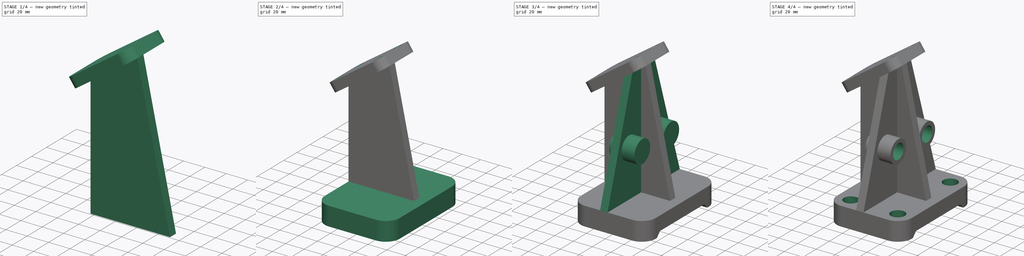
[diagram: build sequence overview — one tinted view per stage of 4, left to right]
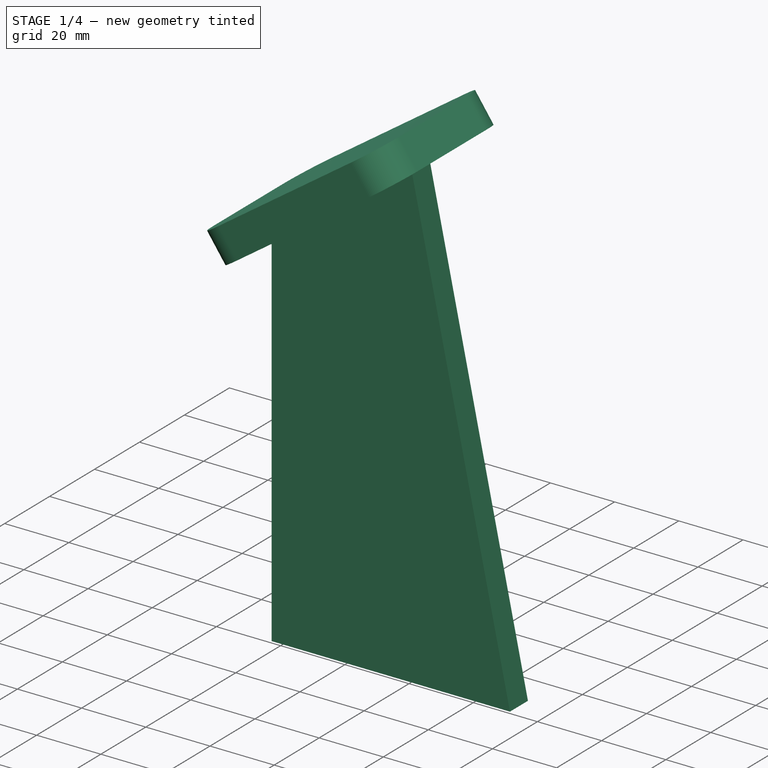
[diagram: stage 1 of 4 — iso view after this stage's code; geometry added in this stage tinted green]
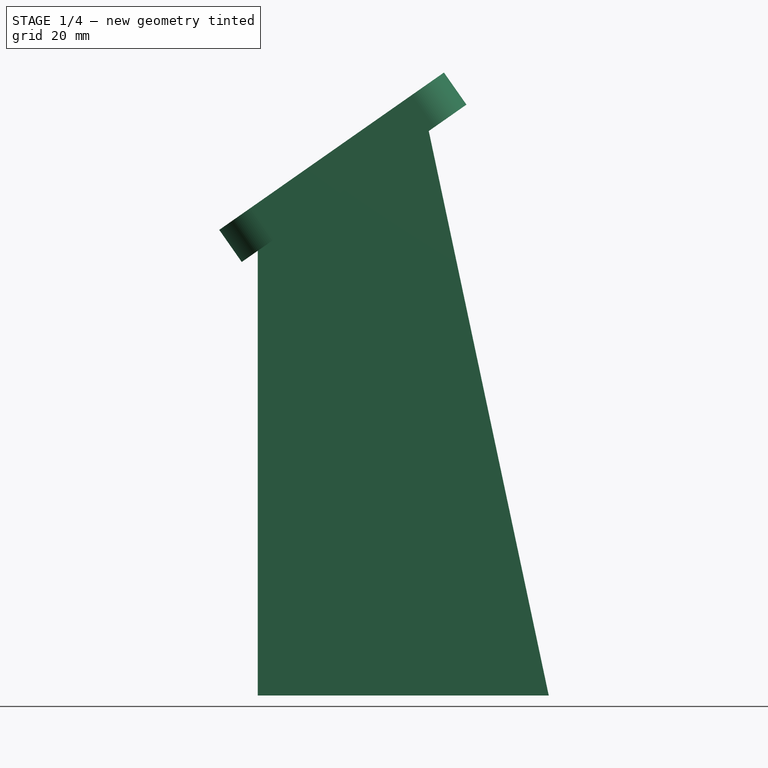
[diagram: stage 1 of 4 — front view after this stage's code; geometry added in this stage tinted green]
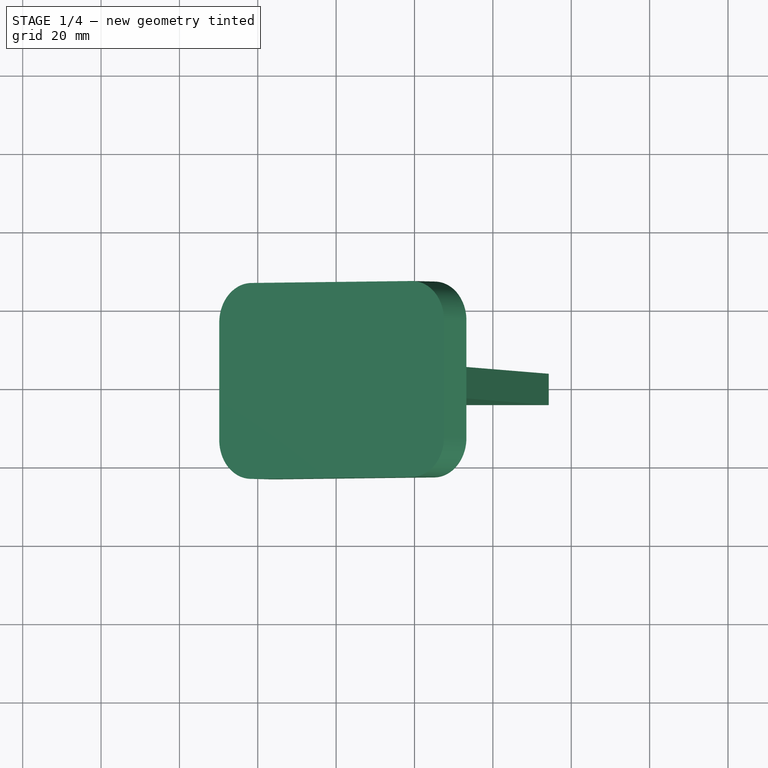
[diagram: stage 1 of 4 — top view after this stage's code; geometry added in this stage tinted green]
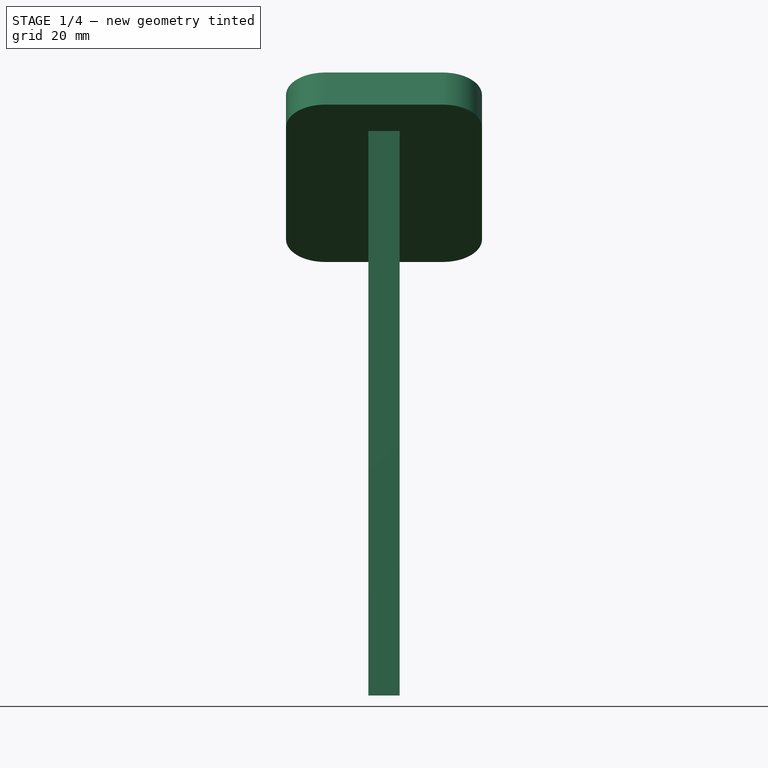
[diagram: stage 1 of 4 — right view after this stage's code; geometry added in this stage tinted green]
FCSTD DOCUMENT  (FreeCAD 1.1R42180 (Git))
Label: 24-WC-36-ANGLE_PLATE
License: Creative Commons Attribution-NonCommercial-ShareAlike 4.0
LicenseURL: https://creativecommons.org/licenses/by-nc-sa/4.0/
objects: Sketcher::SketchObject×9, PartDesign::Pad×5, PartDesign::Pocket×2, PartDesign::Hole×2, App::Point×1, App::TextDocument×1, PartDesign::Body×1
note: 46 computed .brp shape members not serialized (recipe doc carries the construction recipe); baked Part::Feature solids carry a one-line shape summary decoded from their .brp

FEATURE [App::Point] Origin001  label="Origine"
  Role = Origin
FEATURE [Sketcher::SketchObject] Sketch
  ArcFitTolerance = 1e-06
  AttachmentSupport = -> [Origin]
  ExternalTypes = [0]
  FullyConstrained = true
  MakeInternals = false
  MapMode = 5
  Placement = pos=(0,0,0) rot=(1,0,0;1.5708rad)
  sketch-geometry (8):
    g0: LineSegment StartX=0 StartY=113.501 StartZ=0 EndX=0 EndY=0 EndZ=0
    g1: LineSegment StartX=0 StartY=0 StartZ=0 EndX=74.2511 EndY=0 EndZ=0
    g2: LineSegment StartX=74.2511 StartY=0 StartZ=0 EndX=43.6318 EndY=144.052 EndZ=0
    g3: LineSegment StartX=0 StartY=113.501 StartZ=0 EndX=43.6318 EndY=144.052 EndZ=0
    g4: LineSegment [constr] StartX=0 StartY=113.501 StartZ=0 EndX=-5 EndY=110 EndZ=0
    g5: GeomPoint [constr] X=80 Y=0 Z=0
    g6: LineSegment [constr] StartX=80 StartY=0 StartZ=0 EndX=80 EndY=20 EndZ=0
    g7: LineSegment [constr] StartX=80 StartY=20 StartZ=0 EndX=70 EndY=20 EndZ=0
  constraints (22):
    c: PointOnObject(g0,g-2)
    c: Coincident(g0,g-1)
    c: Coincident(g0,g1)
    c: PointOnObject(g1,g-1)
    c: Coincident(g2,g1)
    c: Angle(g0,g2) = 0.20944
    c: Coincident(g3,g0)
    c: Coincident(g3,g2)
    c: Coincident(g4,g0)
    c: PointOnObject(g4,g3)
    c: Angle(g-1,g3) = 0.610865
    c: Distance(g4,g0) = 5
    c: DistanceY(g-1,g4) = 110
    c: PointOnObject(g5,g-1)
    c: DistanceX(g-1,g5) = 80
    c: Distance(g6) = 20
    c: Coincident(g6,g5)
    c: Vertical(g6)
    c: Coincident(g7,g6)
    c: PointOnObject(g7,g2)
    c: Horizontal(g7)
    c: Distance(g7,g7) = 10
FEATURE [PartDesign::Pad] Pad
  Direction = (0,-1,2e-16)
  Length = 8
  Length2 = 10
  Midplane = true
  Profile = -> Sketch
  ReferenceAxis = -> Sketch [N_Axis]
  Refine = true
  Suppressed = false
  Type = 0
FEATURE [Sketcher::SketchObject] Sketch002
  ArcFitTolerance = 1e-06
  AttachmentSupport = -> [Origin]
  ExternalGeometry = -> [Pad]
  ExternalTypes = [0]
  FullyConstrained = true
  MakeInternals = false
  MapMode = 5
  Placement = pos=(0,0,0) rot=(1,0,0;1.5708rad)
  sketch-geometry (1):
    g0: LineSegment StartX=0 StartY=113.501 StartZ=0 EndX=-4.09576 EndY=110.633 EndZ=0
  constraints (3):
    c: Distance(g0) = 5
    c: Coincident(g0,g-3)
    c: PointOnObject(g0,g-3)
FEATURE [Sketcher::SketchObject] Sketch001
  ArcFitTolerance = 1e-06
  AttachmentSupport = -> [Pad]
  ExternalGeometry = -> [Sketch002]
  ExternalTypes = [0,0]
  FullyConstrained = true
  MakeInternals = false
  MapMode = 5
  Placement = pos=(-53.328,1.69e-14,76.1603) rot=(0,-1,0;0.610865rad)
  sketch-geometry (10):
    g0: LineSegment StartX=60.1015 StartY=15 StartZ=0 EndX=60.1015 EndY=-15 EndZ=0
    g1: LineSegment StartX=70.1015 StartY=-25 StartZ=0 EndX=120.102 EndY=-25 EndZ=0
    g2: LineSegment StartX=130.102 StartY=-15 StartZ=0 EndX=130.102 EndY=15 EndZ=0
    g3: LineSegment StartX=120.102 StartY=25 StartZ=0 EndX=70.1015 EndY=25 EndZ=0
    g4: ArcOfCircle CenterX=70.1015 CenterY=15 CenterZ=0 NormalX=0 NormalY=0 NormalZ=1 AngleXU=0 Radius=10 StartAngle=1.5708 EndAngle=3.14159
    g5: ArcOfCircle CenterX=70.1015 CenterY=-15 CenterZ=0 NormalX=0 NormalY=0 NormalZ=1 AngleXU=0 Radius=10 StartAngle=3.14159 EndAngle=4.71239
    g6: ArcOfCircle CenterX=120.102 CenterY=-15 CenterZ=0 NormalX=0 NormalY=0 NormalZ=1 AngleXU=0 Radius=10 StartAngle=4.71239 EndAngle=6.28319
    g7: ArcOfCircle CenterX=120.102 CenterY=15 CenterZ=0 NormalX=0 NormalY=0 NormalZ=1 AngleXU=0 Radius=10 StartAngle=0 EndAngle=1.5708
    g8: GeomPoint [constr] X=60.1015 Y=25 Z=0
    g9: GeomPoint [constr] X=130.102 Y=-25 Z=0
  constraints (23):
    c: Tangent(g0,g4) = -1.5708
    c: Tangent(g0,g5) = -1.5708
    c: Tangent(g1,g5) = -1.5708
    c: Tangent(g1,g6) = -1.5708
    c: Tangent(g2,g6) = -1.5708
    c: Tangent(g2,g7) = -1.5708
    c: Tangent(g3,g7) = -1.5708
    c: Tangent(g3,g4) = -1.5708
    c: Vertical(g0)
    c: Vertical(g2)
    c: Horizontal(g1)
    c: Horizontal(g3)
    c: Equal(g5,g6)
    c: Equal(g6,g7)
    c: PointOnObject(g8,g0)
    c: PointOnObject(g8,g3)
    c: PointOnObject(g9,g1)
    c: PointOnObject(g9,g2)
    c: Distance(g0,g2) = 70
    c: Distance(g1,g3) = 50
    c: Radius(g5) = 10
    c: Symmetric(g5,g4,g-1)
    c: PointOnObject(g-3,g0)
FEATURE [PartDesign::Pad] Pad001
  BaseFeature = -> Pad
  Direction = (-0.573576,0,0.819152)
  Length = 10
  Length2 = 10
  Profile = -> Sketch001
  ReferenceAxis = -> Sketch001 [N_Axis]
  Refine = true
  Suppressed = false
  Type = 0
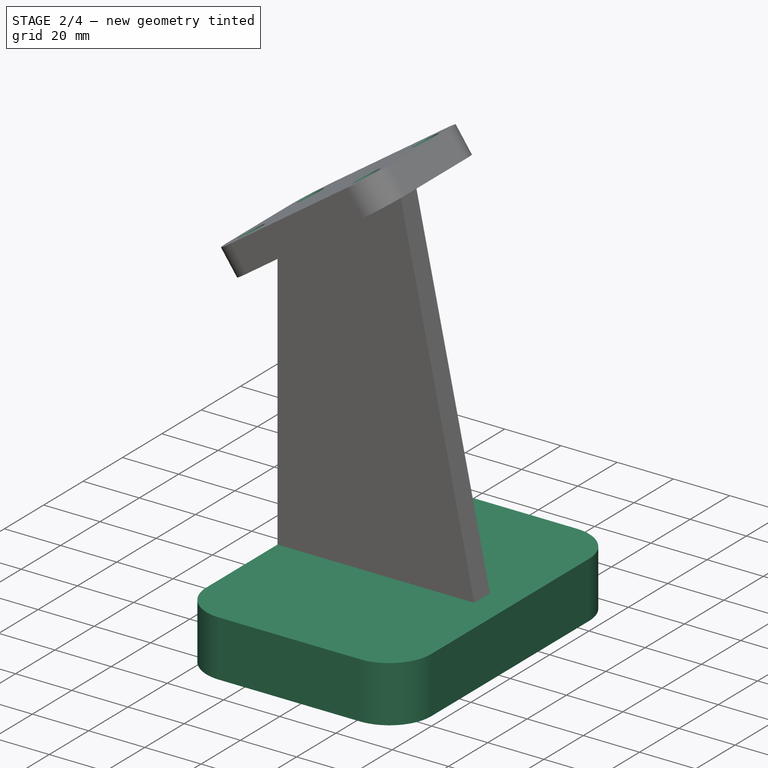
[diagram: stage 2 of 4 — iso view after this stage's code; geometry added in this stage tinted green]
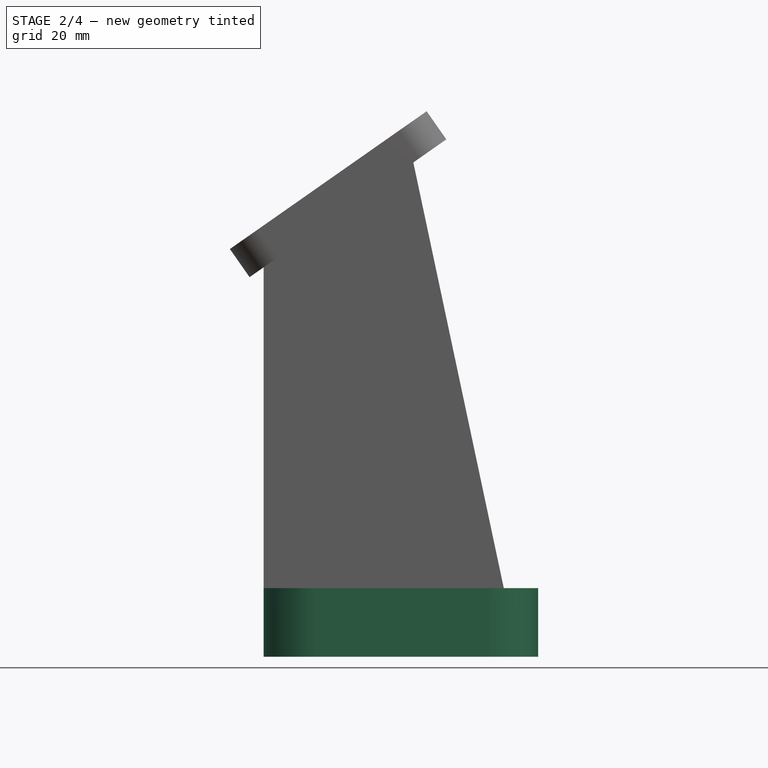
[diagram: stage 2 of 4 — front view after this stage's code; geometry added in this stage tinted green]
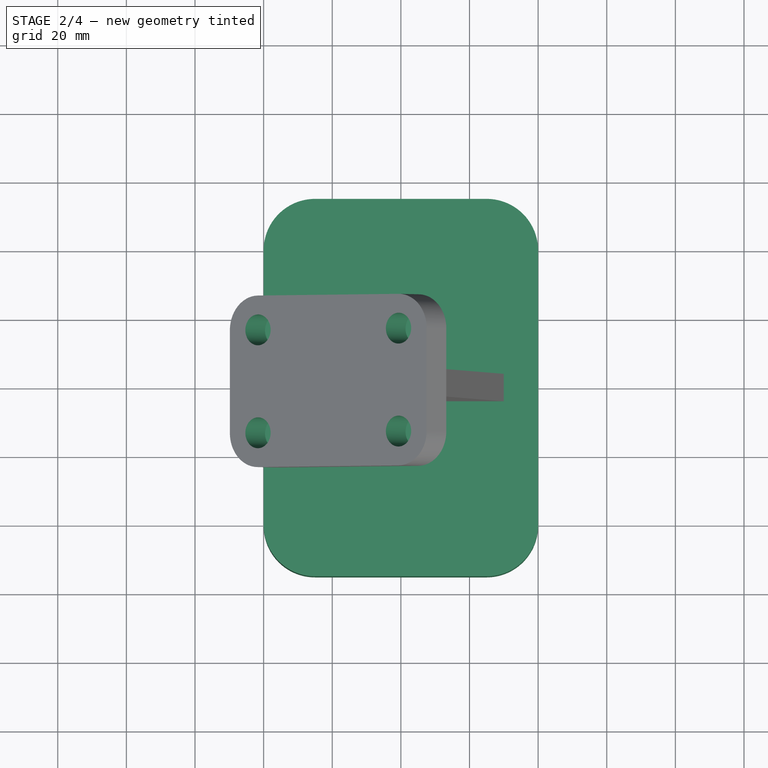
[diagram: stage 2 of 4 — top view after this stage's code; geometry added in this stage tinted green]
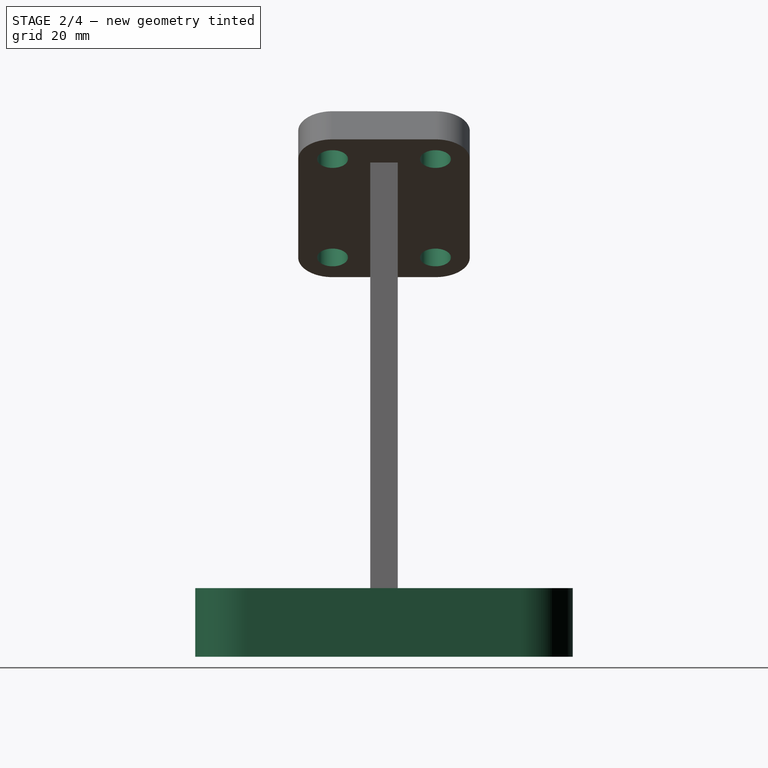
[diagram: stage 2 of 4 — right view after this stage's code; geometry added in this stage tinted green]
FEATURE [Sketcher::SketchObject] Sketch003
  ArcFitTolerance = 1e-06
  AttachmentSupport = -> [Pad001]
  ExternalGeometry = -> [Pad001]
  ExternalTypes = [0,0,0,0]
  FullyConstrained = true
  MakeInternals = false
  MapMode = 5
  Placement = pos=(-59.0638,0,84.3519) rot=(0,-1,0;0.610865rad)
  sketch-geometry (4):
    g0: Circle CenterX=70.1015 CenterY=15 CenterZ=0 NormalX=0 NormalY=0 NormalZ=1 AngleXU=0 Radius=4.5
    g1: Circle CenterX=120.102 CenterY=15 CenterZ=0 NormalX=0 NormalY=0 NormalZ=1 AngleXU=0 Radius=4.5
    g2: Circle CenterX=120.102 CenterY=-15 CenterZ=0 NormalX=0 NormalY=0 NormalZ=1 AngleXU=0 Radius=4.5
    g3: Circle CenterX=70.1015 CenterY=-15 CenterZ=0 NormalX=0 NormalY=0 NormalZ=1 AngleXU=0 Radius=4.5
  constraints (8):
    c: Coincident(g0,g-3)
    c: Coincident(g1,g-4)
    c: Coincident(g2,g-5)
    c: Coincident(g3,g-6)
    c: Diameter(g1) = 9
    c: Equal(g2,g1)
    c: Equal(g1,g0)
    c: Equal(g3,g0)
FEATURE [PartDesign::Pocket] Pocket
  BaseFeature = -> Pad001
  Direction = (0.573576,0,-0.819152)
  Length = 0
  Length2 = 5
  Profile = -> Sketch003
  ReferenceAxis = -> Sketch003 [N_Axis]
  Refine = true
  Suppressed = false
  Type = 3
  UpToFace = -> Pad001 [Face2]
FEATURE [Sketcher::SketchObject] Sketch004
  ArcFitTolerance = 1e-06
  AttachmentSupport = -> [Origin]
  ExternalTypes = [0]
  FullyConstrained = true
  MakeInternals = false
  MapMode = 5
  sketch-geometry (12):
    g0: LineSegment StartX=0 StartY=40 StartZ=0 EndX=0 EndY=-40 EndZ=0
    g1: LineSegment StartX=15 StartY=-55 StartZ=0 EndX=65 EndY=-55 EndZ=0
    g2: LineSegment StartX=80 StartY=-40 StartZ=0 EndX=80 EndY=40 EndZ=0
    g3: LineSegment StartX=65 StartY=55 StartZ=0 EndX=15 EndY=55 EndZ=0
    g4: ArcOfCircle CenterX=15 CenterY=40 CenterZ=0 NormalX=0 NormalY=0 NormalZ=1 AngleXU=0 Radius=15 StartAngle=1.5708 EndAngle=3.14159
    g5: ArcOfCircle CenterX=15 CenterY=-40 CenterZ=0 NormalX=0 NormalY=0 NormalZ=1 AngleXU=0 Radius=15 StartAngle=3.14159 EndAngle=4.71239
    g6: ArcOfCircle CenterX=65 CenterY=-40 CenterZ=0 NormalX=0 NormalY=0 NormalZ=1 AngleXU=0 Radius=15 StartAngle=4.71239 EndAngle=6.28319
    g7: ArcOfCircle CenterX=65 CenterY=40 CenterZ=0 NormalX=0 NormalY=0 NormalZ=1 AngleXU=0 Radius=15 StartAngle=0 EndAngle=1.5708
    g8: GeomPoint [constr] X=0 Y=55 Z=0
    g9: GeomPoint [constr] X=80 Y=-55 Z=0
    g10: LineSegment [constr] StartX=15 StartY=40 StartZ=0 EndX=15 EndY=0 EndZ=0
    g11: LineSegment [constr] StartX=15 StartY=0 StartZ=0 EndX=15 EndY=-40 EndZ=0
  constraints (30):
    c: Tangent(g0,g4) = -1.5708
    c: Tangent(g0,g5) = -1.5708
    c: Tangent(g1,g5) = -1.5708
    c: Tangent(g1,g6) = -1.5708
    c: Tangent(g2,g6) = -1.5708
    c: Tangent(g2,g7) = -1.5708
    c: Tangent(g3,g7) = -1.5708
    c: Tangent(g3,g4) = -1.5708
    c: Vertical(g0)
    c: Vertical(g2)
    c: Horizontal(g1)
    c: Horizontal(g3)
    c: Equal(g4,g5)
    c: Equal(g5,g6)
    c: Equal(g6,g7)
    c: PointOnObject(g8,g0)
    c: PointOnObject(g8,g3)
    c: PointOnObject(g9,g1)
    c: PointOnObject(g9,g2)
    c: Distance(g0,g2) = 80
    c: Distance(g1,g3) = 110
    c: Radius(g5) = 15
    c: PointOnObject(g-1,g0)
    c: Coincident(g10,g4)
    c: PointOnObject(g10,g-1)
    c: Vertical(g10)
    c: PointOnObject(g11,g-1)
    c: Coincident(g11,g5)
    c: Vertical(g11)
    c: Equal(g11,g10)
FEATURE [PartDesign::Pad] Pad002
  BaseFeature = -> Pocket
  Direction = (0,0,1)
  Length = 20
  Length2 = 10
  Profile = -> Sketch004
  ReferenceAxis = -> Sketch004 [N_Axis]
  Refine = true
  Suppressed = false
  Type = 0
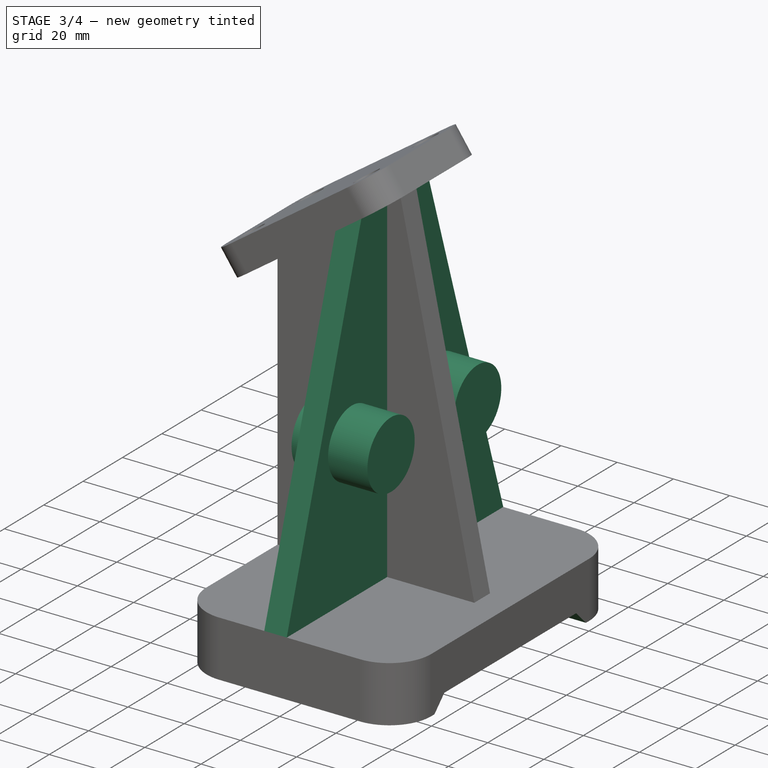
[diagram: stage 3 of 4 — iso view after this stage's code; geometry added in this stage tinted green]
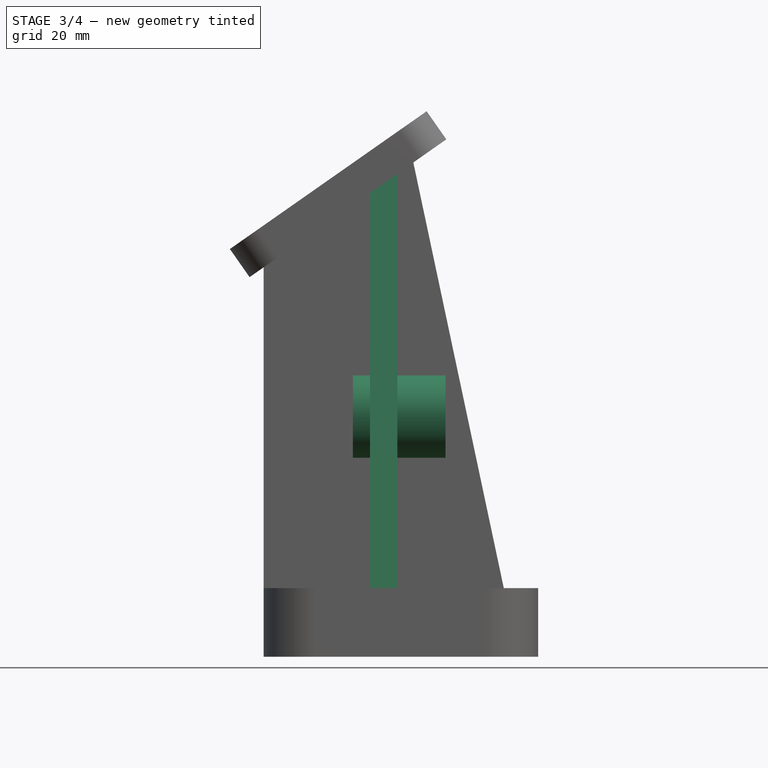
[diagram: stage 3 of 4 — front view after this stage's code; geometry added in this stage tinted green]
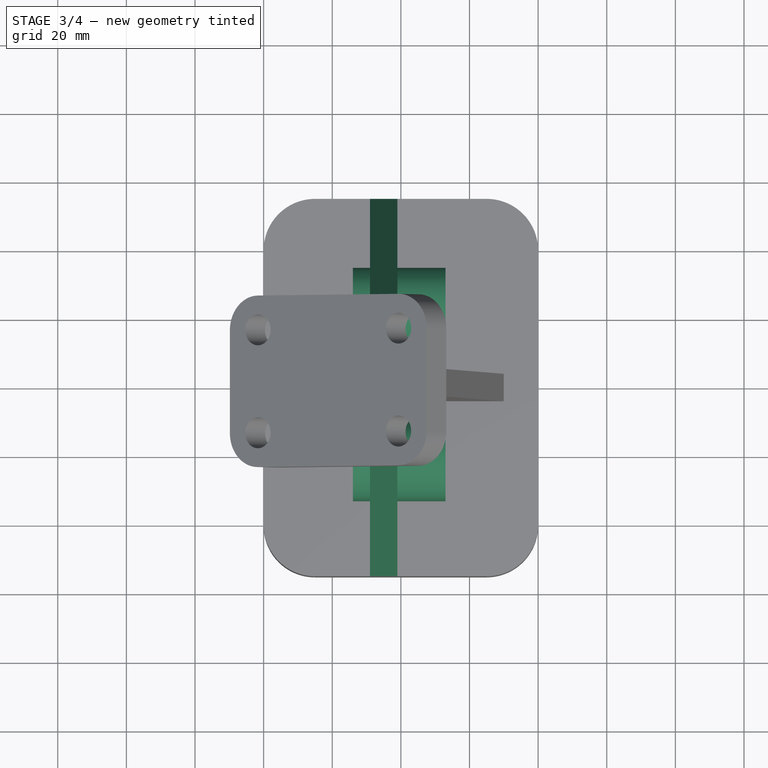
[diagram: stage 3 of 4 — top view after this stage's code; geometry added in this stage tinted green]
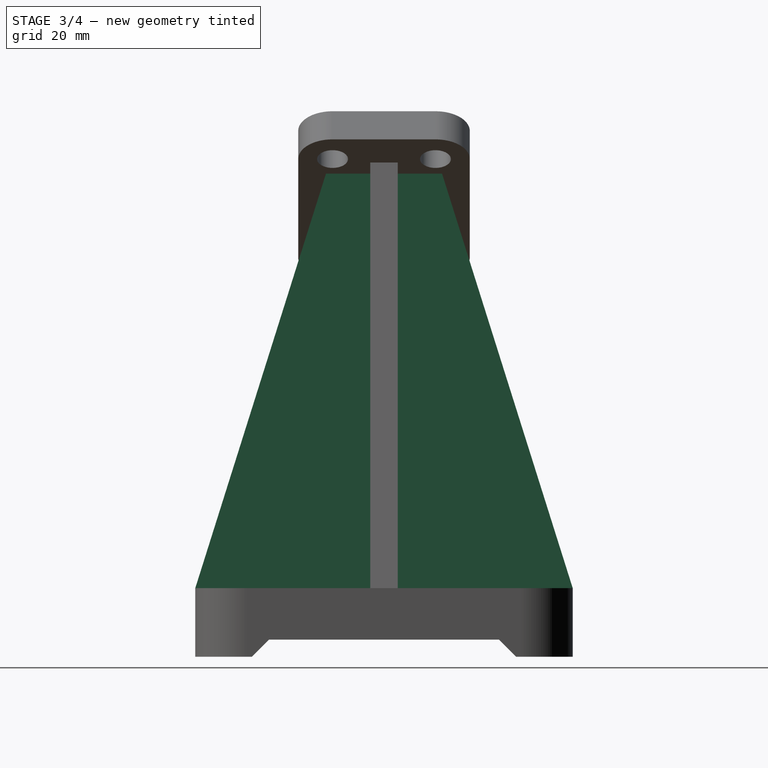
[diagram: stage 3 of 4 — right view after this stage's code; geometry added in this stage tinted green]
FEATURE [Sketcher::SketchObject] Sketch006
  ArcFitTolerance = 1e-06
  AttachmentSupport = -> [Origin]
  ExternalGeometry = -> [Pad002]
  ExternalTypes = [0]
  FullyConstrained = true
  MakeInternals = false
  MapMode = 5
  Placement = pos=(0,0,0) rot=(1,0,0;1.5708rad)
  sketch-geometry (5):
    g0: LineSegment [constr] StartX=0 StartY=113.501 StartZ=0 EndX=31 EndY=113.501 EndZ=0
    g1: LineSegment StartX=31 StartY=113.501 StartZ=0 EndX=31 EndY=135.207 EndZ=0
    g2: LineSegment StartX=31 StartY=135.207 StartZ=0 EndX=39 EndY=140.809 EndZ=0
    g3: LineSegment StartX=39 StartY=140.809 StartZ=0 EndX=39 EndY=113.501 EndZ=0
    g4: LineSegment StartX=39 StartY=113.501 StartZ=0 EndX=31 EndY=113.501 EndZ=0
  constraints (15):
    c: Distance(g0) = 31
    c: PointOnObject(g0,g-3)
    c: Horizontal(g0)
    c: Coincident(g1,g0)
    c: PointOnObject(g1,g-3)
    c: Vertical(g1)
    c: Vertical(g0,g-3)
    c: Coincident(g1,g2)
    c: PointOnObject(g2,g-3)
    c: Coincident(g2,g3)
    c: Vertical(g3)
    c: Coincident(g3,g4)
    c: Coincident(g4,g0)
    c: Horizontal(g4)
    c: Distance(g4,g4) = 8
FEATURE [Sketcher::SketchObject] Sketch005
  ArcFitTolerance = 1e-06
  AttachmentOffset = pos=(0,0,31) rot=(0,0,1;0rad)
  AttachmentSupport = -> [Origin]
  ExternalGeometry = -> [Pad002,Sketch006]
  ExternalTypes = [0,0,0,0]
  FullyConstrained = true
  MakeInternals = false
  MapMode = 5
  Placement = pos=(31,0,0) rot=(0.57735,0.57735,0.57735;2.0944rad)
  sketch-geometry (4):
    g0: LineSegment StartX=-55 StartY=20 StartZ=0 EndX=55 EndY=20 EndZ=0
    g1: LineSegment StartX=55 StartY=20 StartZ=0 EndX=16.909 EndY=140.809 EndZ=0
    g2: LineSegment StartX=16.909 StartY=140.809 StartZ=0 EndX=-16.909 EndY=140.809 EndZ=0
    g3: LineSegment StartX=-16.909 StartY=140.809 StartZ=0 EndX=-55 EndY=20 EndZ=0
  constraints (10):
    c: Coincident(g0,g1)
    c: Coincident(g1,g2)
    c: Coincident(g2,g3)
    c: Symmetric(g2,g1,g-2)
    c: Angle(g3,g1) = 0.610865
    c: Horizontal(g0)
    c: Vertical(g-4,g0)
    c: PointOnObject(g-5,g2)
    c: Coincident(g0,g3)
    c: Coincident(g0,g-3)
FEATURE [PartDesign::Pad] Pad003
  BaseFeature = -> Pad002
  Direction = (1,0,0)
  Length = 8
  Length2 = 10
  Profile = -> Sketch005
  ReferenceAxis = -> Sketch005 [N_Axis]
  Refine = true
  Suppressed = false
  Type = 0
FEATURE [Sketcher::SketchObject] Sketch007
  ArcFitTolerance = 1e-06
  AttachmentSupport = -> [Pad003]
  ExternalGeometry = -> [Pad003]
  ExternalTypes = [0,0]
  FullyConstrained = true
  MakeInternals = false
  MapMode = 5
  Placement = pos=(0,0,0) rot=(0.57735,-0.57735,-0.57735;2.0944rad)
  sketch-geometry (4):
    g0: LineSegment StartX=-38.5 StartY=0 StartZ=0 EndX=38.5 EndY=0 EndZ=0
    g1: LineSegment StartX=38.5 StartY=0 StartZ=0 EndX=33.5 EndY=5 EndZ=0
    g2: LineSegment StartX=33.5 StartY=5 StartZ=0 EndX=-33.5 EndY=5 EndZ=0
    g3: LineSegment StartX=-33.5 StartY=5 StartZ=0 EndX=-38.5 EndY=0 EndZ=0
  constraints (10):
    c: Coincident(g0,g1)
    c: Coincident(g1,g2)
    c: Coincident(g2,g3)
    c: Coincident(g3,g0)
    c: DistanceX(g0,g0) = 77
    c: Symmetric(g0,g0,g-2)
    c: Distance(g1,g0) = 5
    c: Angle(g1,g0) = 0.785398
    c: Symmetric(g2,g1,g-2)
    c: PointOnObject(g0,g-1)
FEATURE [PartDesign::Pocket] Pocket001
  BaseFeature = -> Pad003
  Direction = (1,0,0)
  Length = 5
  Length2 = 5
  Midplane = true
  Profile = -> Sketch007
  ReferenceAxis = -> Sketch007 [N_Axis]
  Refine = true
  Suppressed = false
  Type = 1
FEATURE [Sketcher::SketchObject] Sketch008
  ArcFitTolerance = 1e-06
  ExternalTypes = [0]
  FullyConstrained = true
  MakeInternals = false
  MapMode = 5
  Placement = pos=(31,0,0) rot=(0.57735,-0.57735,-0.57735;2.0944rad)
  sketch-geometry (2):
    g0: Circle CenterX=-22 CenterY=70 CenterZ=0 NormalX=0 NormalY=0 NormalZ=1 AngleXU=0 Radius=12
    g1: Circle CenterX=22 CenterY=70 CenterZ=0 NormalX=0 NormalY=0 NormalZ=1 AngleXU=0 Radius=12
  constraints (5):
    c: Symmetric(g1,g0,g-2)
    c: DistanceY(g-1,g1) = 70
    c: Distance(g0,g1) = 44
    c: Diameter(g0) = 24
    c: Equal(g1,g0)
FEATURE [PartDesign::Pad] Pad004
  BaseFeature = -> Pocket001
  Direction = (-1,0,0)
  Length = 5
  Length2 = 22
  Profile = -> Sketch008
  ReferenceAxis = -> Sketch008 [N_Axis]
  Refine = true
  Suppressed = false
  Type = 4
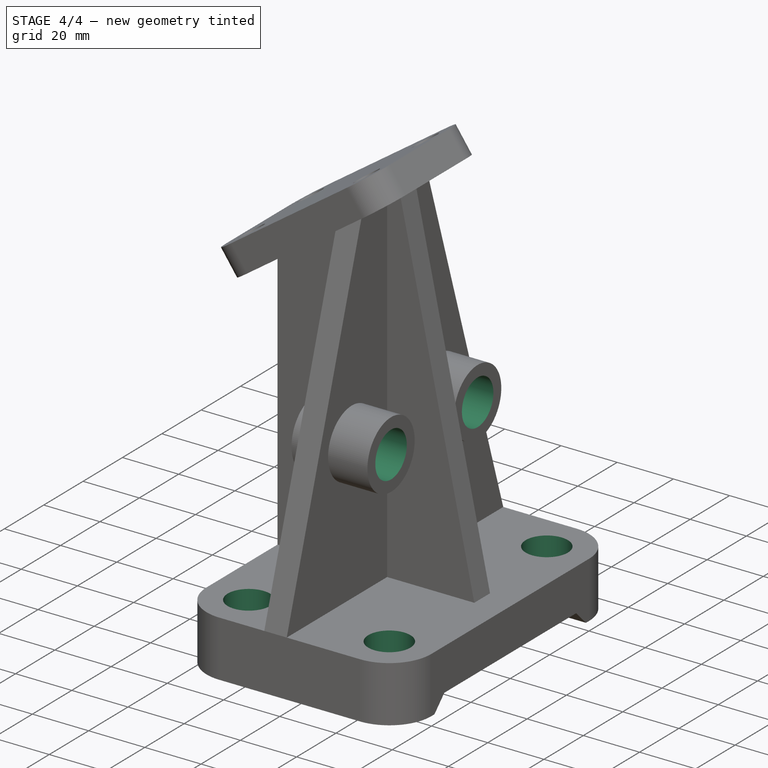
[diagram: stage 4 of 4 — iso view after this stage's code; geometry added in this stage tinted green]
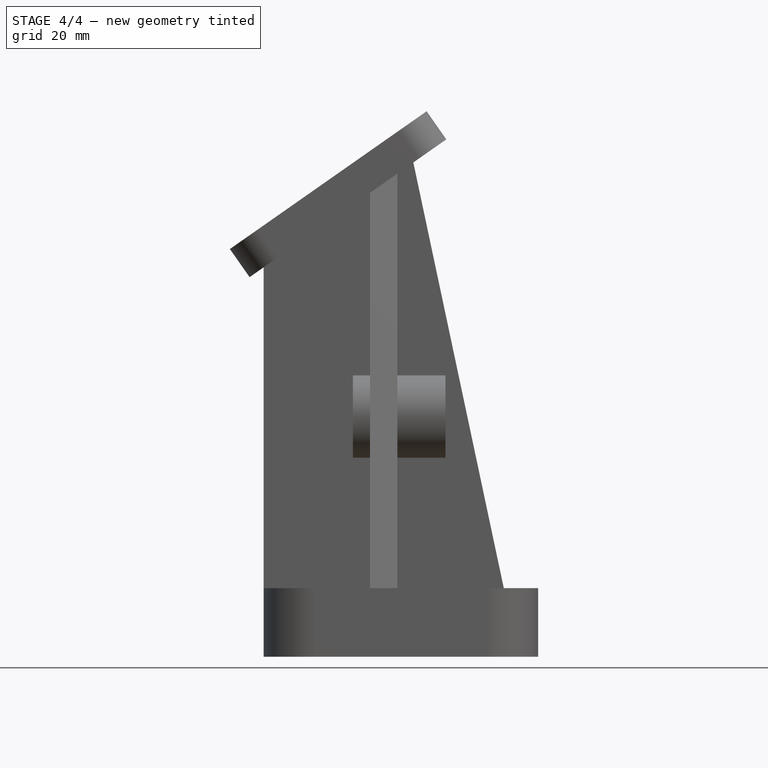
[diagram: stage 4 of 4 — front view after this stage's code; geometry added in this stage tinted green]
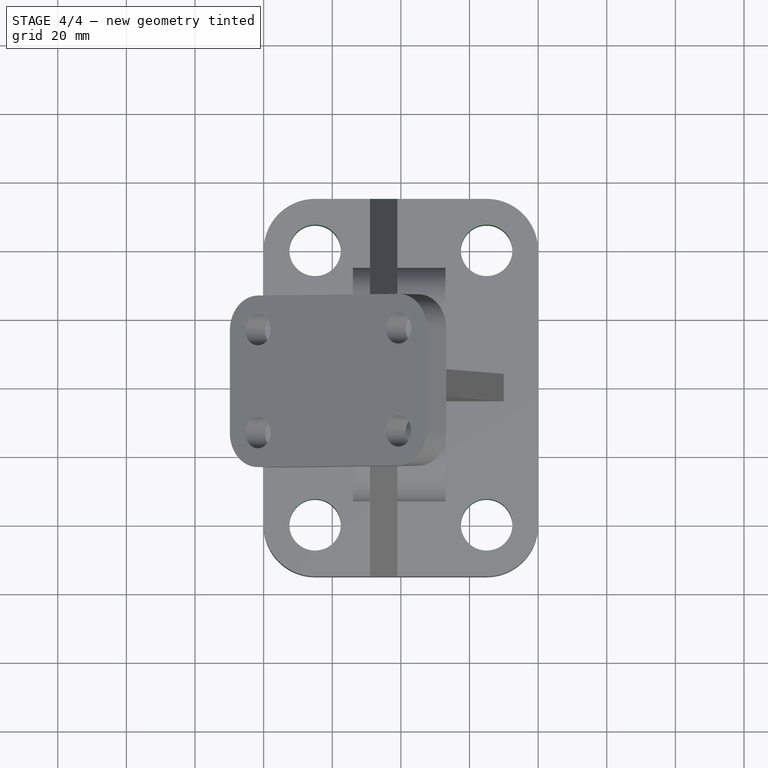
[diagram: stage 4 of 4 — top view after this stage's code; geometry added in this stage tinted green]
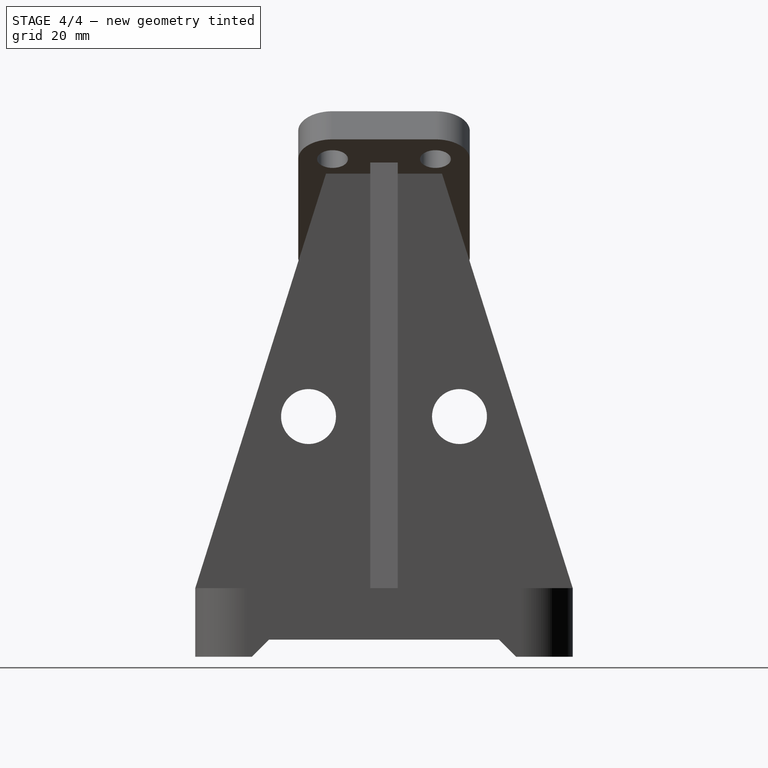
[diagram: stage 4 of 4 — right view after this stage's code; geometry added in this stage tinted green]
FEATURE [PartDesign::Hole] Hole001
  BaseFeature = -> Pad004
  BaseProfileType = 7
  CustomThreadClearance = 0
  Depth = 461.524
  DepthType = 1
  Diameter = 16
  DrillForDepth = false
  DrillPoint = 1
  DrillPointAngle = 118
  HoleCutCountersinkAngle = 90
  HoleCutCustomValues = false
  HoleCutDepth = 0
  HoleCutDiameter = 0
  HoleCutType = 0
  ModelThread = false
  Profile = -> Pad004 [Edge70,Edge118]
  Refine = true
  Reversed = true
  Suppressed = false
  Tapered = false
  TaperedAngle = 90
  ThreadClass = 0
  ThreadDepth = 461.524
  ThreadDepthType = 0
  ThreadDiameter = 16
  ThreadDirection = 0
  ThreadFit = 0
  ThreadSize = 0
  ThreadType = 0
  Threaded = false
  UseCustomThreadClearance = false
FEATURE [App::TextDocument] Text_document  label="Text document"
  Text = https://www.youtube.com/watch?v=m2JK1qoa3YI\n\n7800 kg/m3\n\n2184g, good!
FEATURE [PartDesign::Hole] Hole
  BaseFeature = -> Hole001
  BaseProfileType = 7
  CustomThreadClearance = 0
  Depth = 430.61
  DepthType = 1
  Diameter = 15
  DrillForDepth = false
  DrillPoint = 1
  DrillPointAngle = 118
  HoleCutCountersinkAngle = 90
  HoleCutCustomValues = false
  HoleCutDepth = 0
  HoleCutDiameter = 0
  HoleCutType = 0
  ModelThread = false
  Profile = -> Hole001 [Edge47,Edge113,Edge116,Edge18]
  Refine = true
  Suppressed = false
  Tapered = false
  TaperedAngle = 90
  ThreadClass = 0
  ThreadDepth = 430.61
  ThreadDepthType = 0
  ThreadDiameter = 15
  ThreadDirection = 0
  ThreadFit = 0
  ThreadSize = 0
  ThreadType = 0
  Threaded = false
  UseCustomThreadClearance = false
FEATURE [PartDesign::Body] Body
  AllowCompound = true
  Group = -> [Sketch,Pad,Sketch001,Sketch002,Pad001,Sketch003,Pocket,Sketch004,Pad002,Sketch005,Sketch006,Pad003,Sketch007,Pocket001,Sketch008,Pad004,Hole001,Hole]
  Origin = -> Origin
  Tip = -> Hole
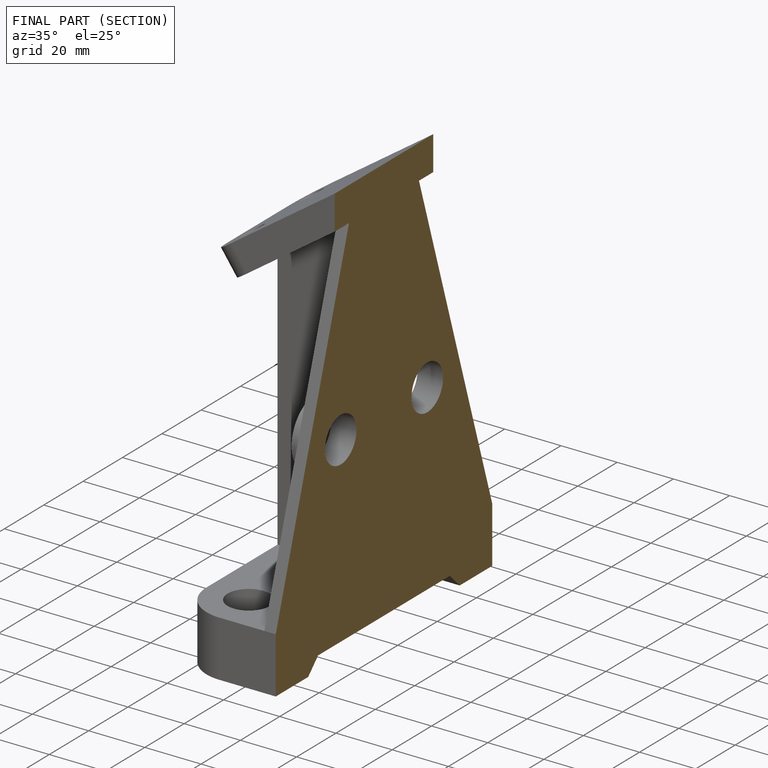
[diagram: finished part — half-section view (interior)]
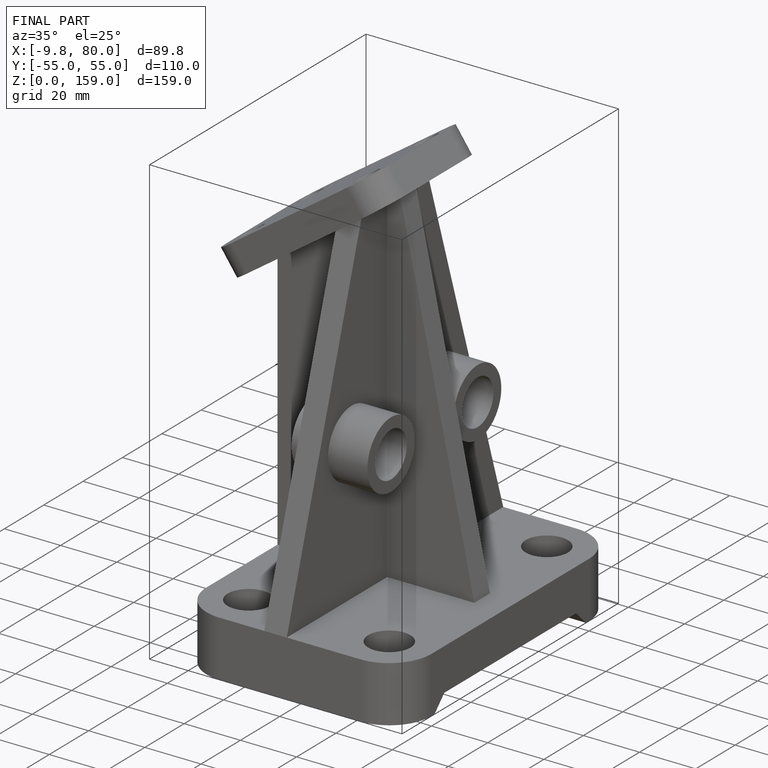
[diagram: finished part — iso view with bounding-box wireframe]
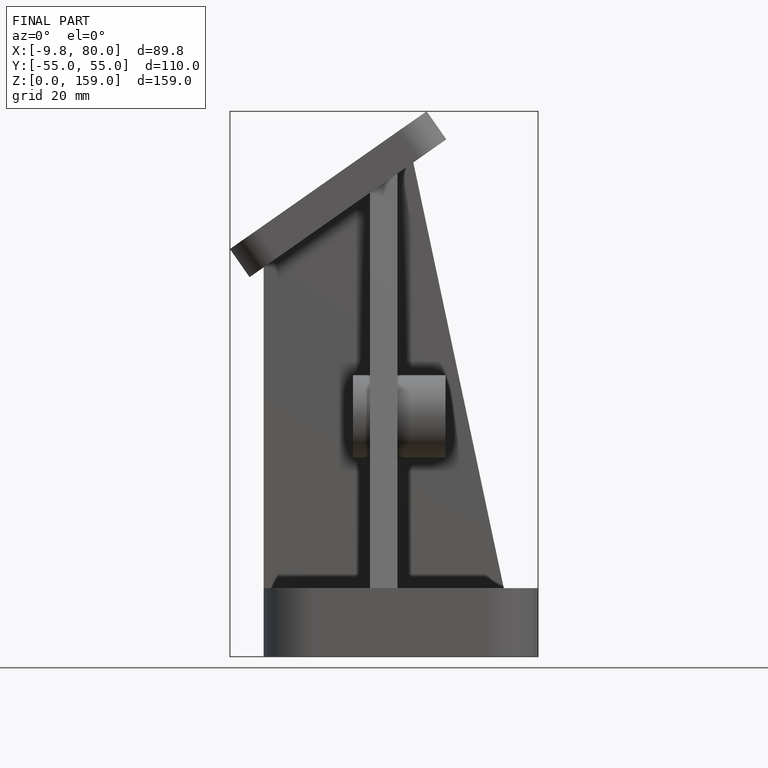
[diagram: finished part — front view with bounding-box wireframe]
